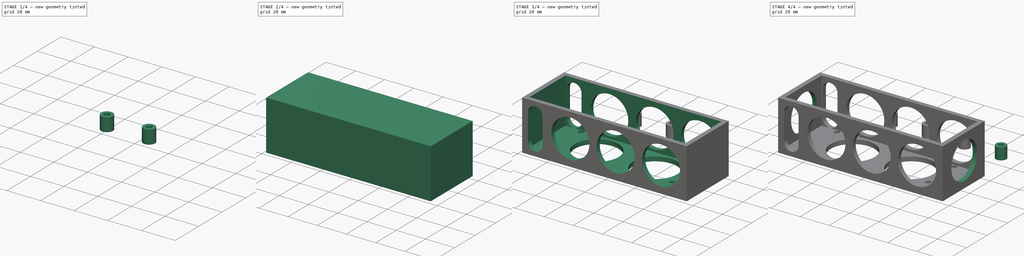
[diagram: build sequence overview — one tinted view per stage of 4, left to right]
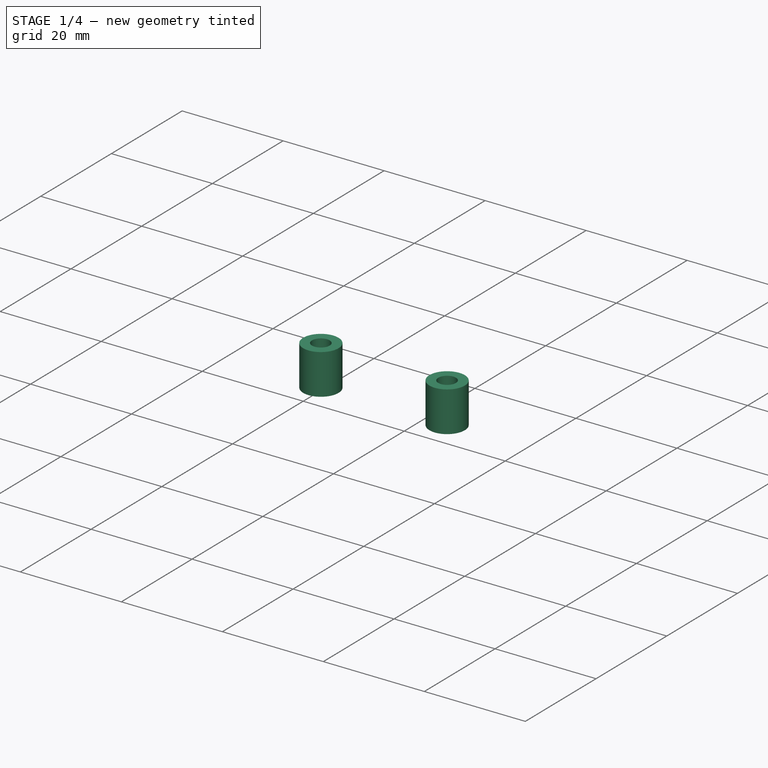
[diagram: stage 1 of 4 — iso view after this stage's code; geometry added in this stage tinted green]
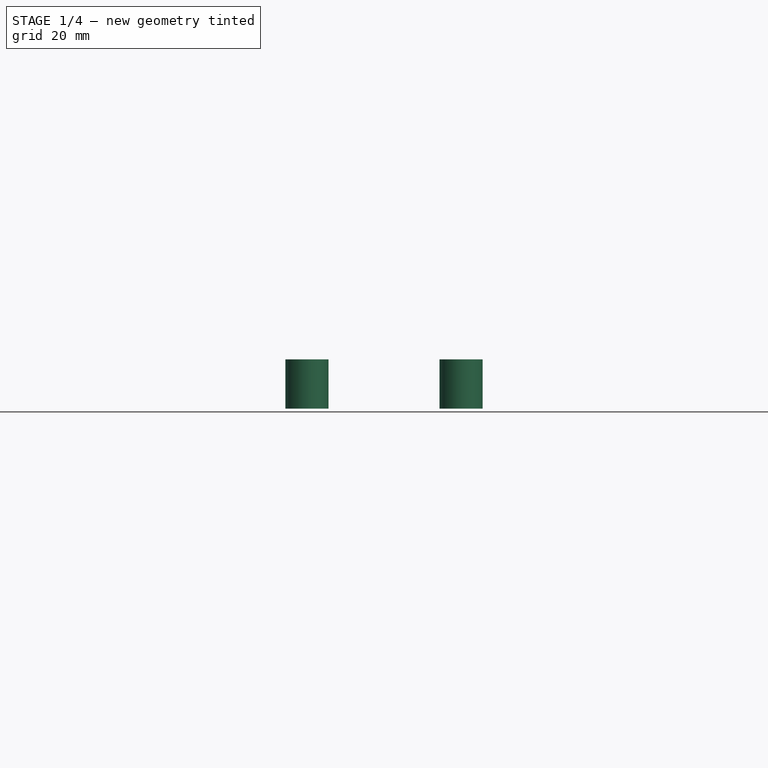
[diagram: stage 1 of 4 — front view after this stage's code; geometry added in this stage tinted green]
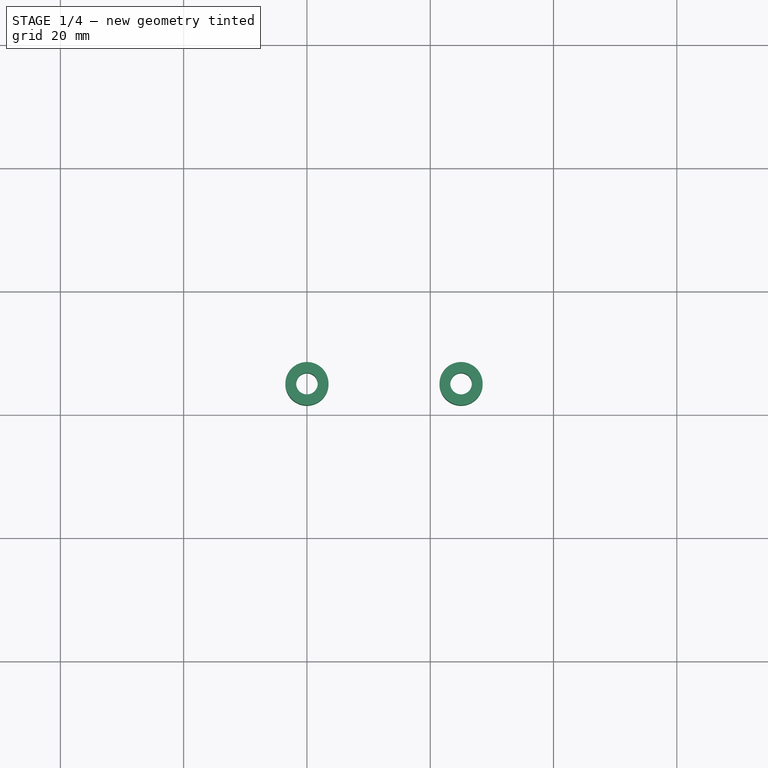
[diagram: stage 1 of 4 — top view after this stage's code; geometry added in this stage tinted green]
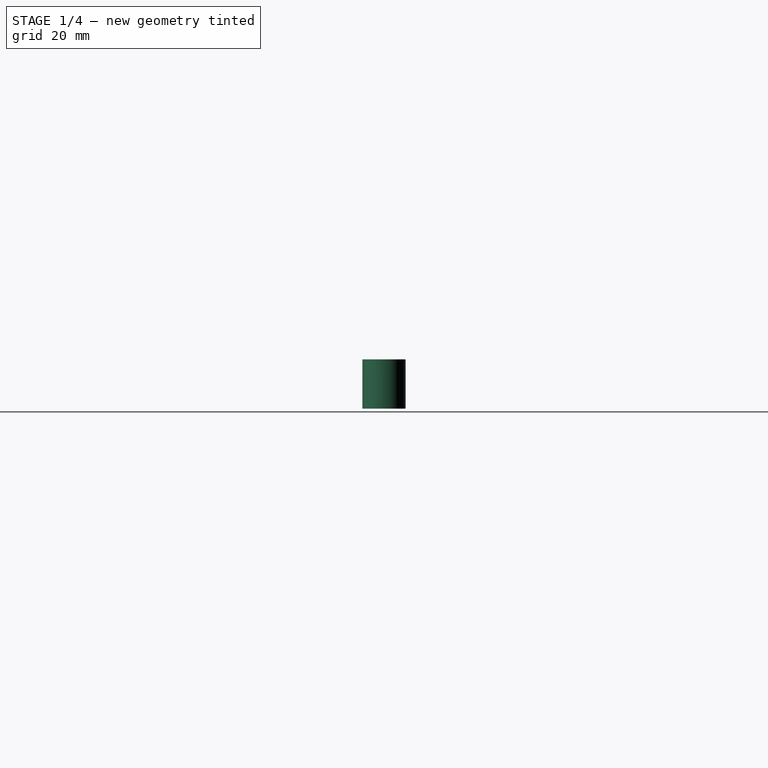
[diagram: stage 1 of 4 — right view after this stage's code; geometry added in this stage tinted green]
FCSTD DOCUMENT  (FreeCAD 0.14R3700 (Git))
Label: BatteryBoxSpacer
License: CC-BY 3.0
LicenseURL: http://creativecommons.org/licenses/by/3.0/
objects: Sketcher::SketchObject×9, PartDesign::Pad×5, PartDesign::Pocket×4
note: 27 computed .brp shape members not serialized (recipe doc carries the construction recipe); baked Part::Feature solids carry a one-line shape summary decoded from their .brp

FEATURE [Sketcher::SketchObject] Sketch007
  Placement = pos=(25,25,0) rot=(0,0,1;0rad)
  sketch-geometry (2):
    g0: Circle CenterX=0 CenterY=0 CenterZ=0 NormalX=0 NormalY=0 NormalZ=1 Radius=3.5
    g1: Circle CenterX=0 CenterY=0 CenterZ=0 NormalX=0 NormalY=0 NormalZ=1 Radius=1.75
  constraints (4):
    c: Radius(g0) = 3.5
    c: Coincident(g0,g-1)
    c: Radius(g1) = 1.75
    c: Coincident(g1,g-1)
FEATURE [PartDesign::Pad] Pad003
  Length = 8
  Length2 = 20
  Placement = pos=(25,25,0) rot=(0,0,1;0rad)
  Sketch = -> Sketch007
  Type = 0
FEATURE [Sketcher::SketchObject] Sketch008
  Placement = pos=(0,25,0) rot=(0,0,1;0rad)
  sketch-geometry (2):
    g0: Circle CenterX=0 CenterY=0 CenterZ=0 NormalX=0 NormalY=0 NormalZ=1 Radius=3.5
    g1: Circle CenterX=0 CenterY=0 CenterZ=0 NormalX=0 NormalY=0 NormalZ=1 Radius=1.75
  constraints (4):
    c: Radius(g0) = 3.5
    c: Coincident(g0,g-1)
    c: Radius(g1) = 1.75
    c: Coincident(g1,g-1)
FEATURE [PartDesign::Pad] Pad004
  Length = 8
  Length2 = 20
  Placement = pos=(0,25,0) rot=(0,0,1;0rad)
  Sketch = -> Sketch008
  Type = 0
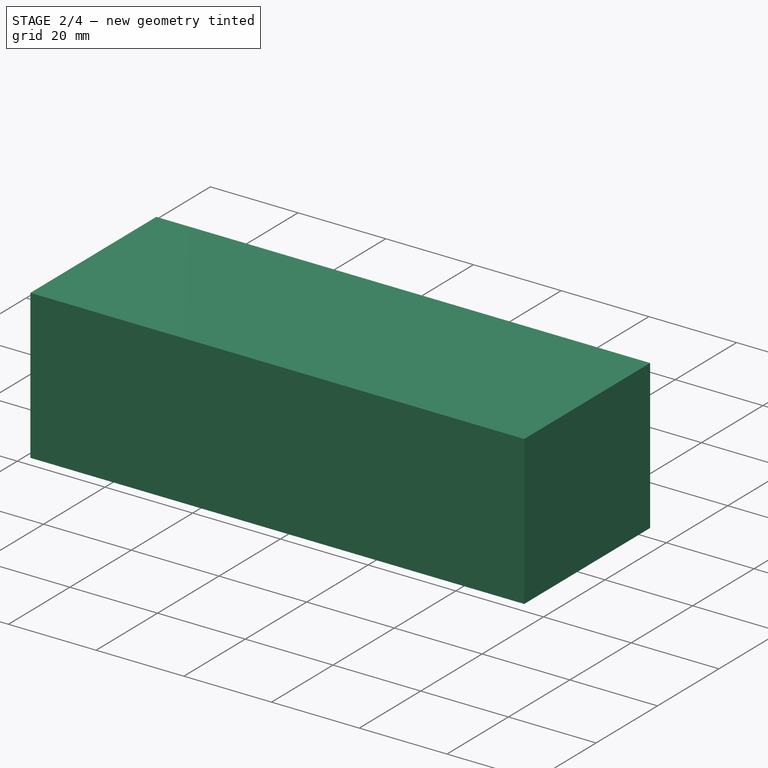
[diagram: stage 2 of 4 — iso view after this stage's code; geometry added in this stage tinted green]
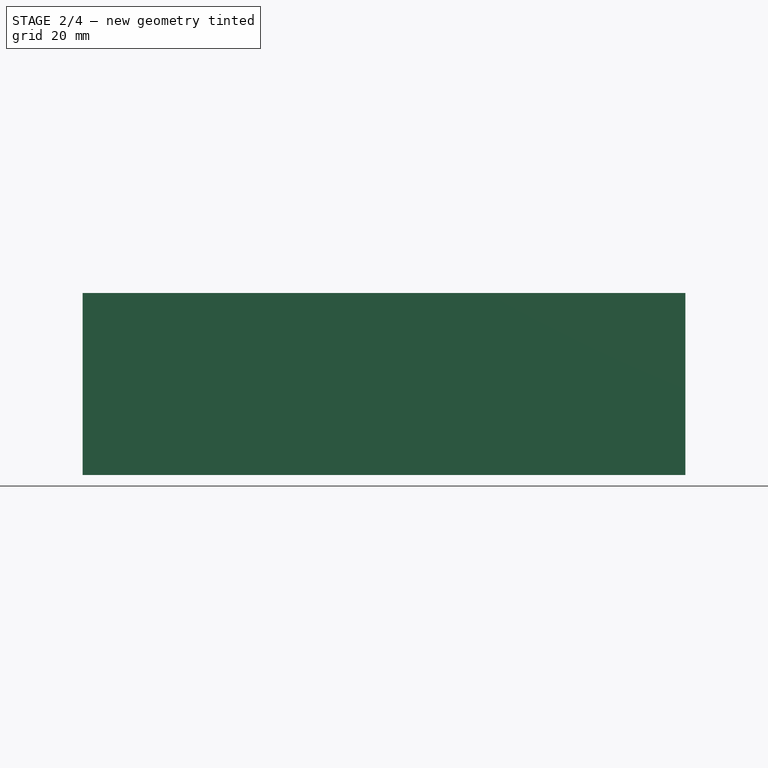
[diagram: stage 2 of 4 — front view after this stage's code; geometry added in this stage tinted green]
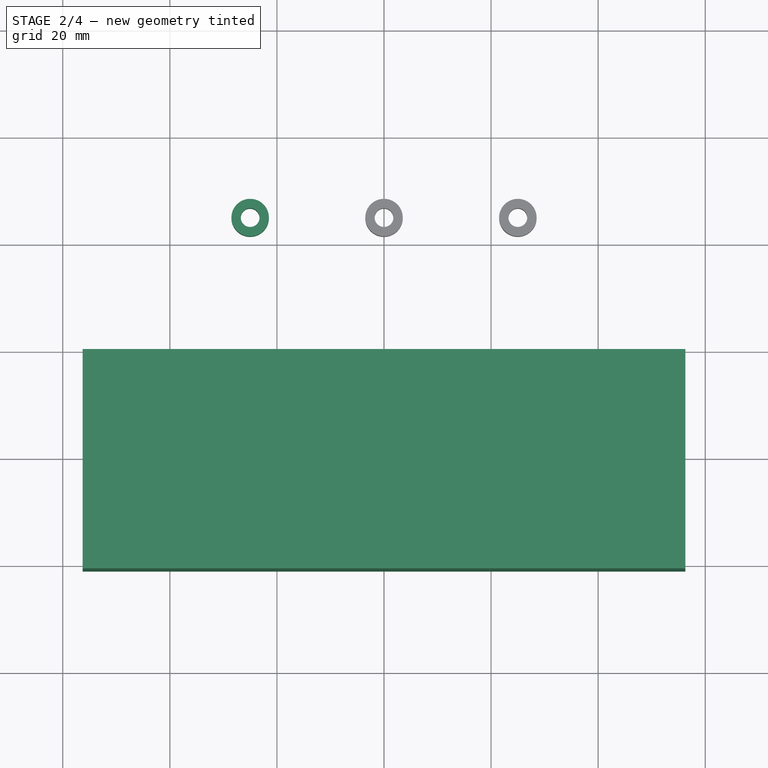
[diagram: stage 2 of 4 — top view after this stage's code; geometry added in this stage tinted green]
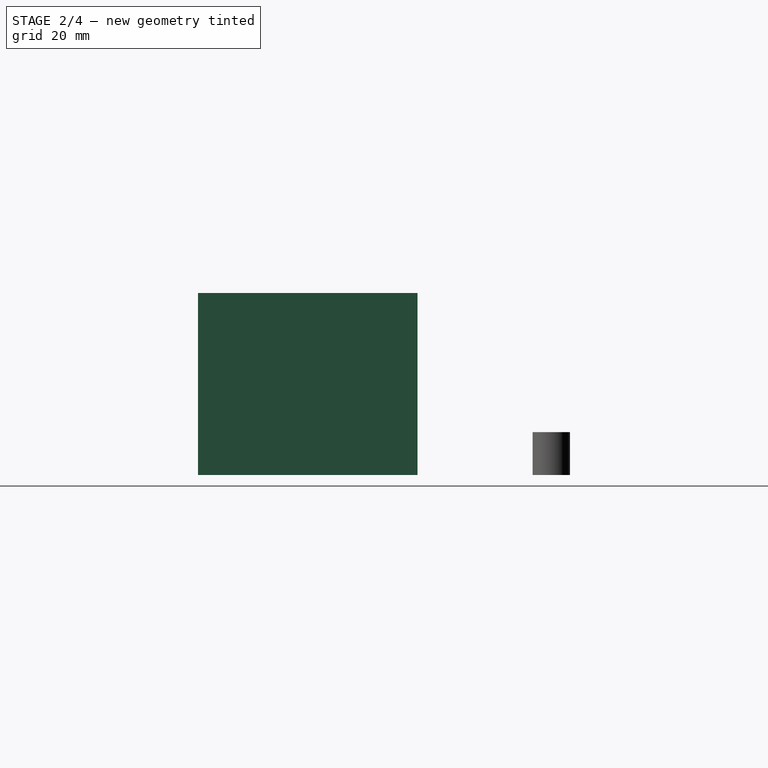
[diagram: stage 2 of 4 — right view after this stage's code; geometry added in this stage tinted green]
FEATURE [Sketcher::SketchObject] Sketch001  label="Top"
  Placement = pos=(0,0,0) rot=(1,0,0;1.5708rad)
  sketch-geometry (4):
    g0: LineSegment StartX=-56.3 StartY=0 StartZ=0 EndX=56.3 EndY=0 EndZ=0
    g1: LineSegment StartX=56.3 StartY=0 StartZ=0 EndX=56.3 EndY=34 EndZ=0
    g2: LineSegment StartX=56.3 StartY=34 StartZ=0 EndX=-56.3 EndY=34 EndZ=0
    g3: LineSegment StartX=-56.3 StartY=34 StartZ=0 EndX=-56.3 EndY=0 EndZ=0
  constraints (12):
    c: Coincident(g0,g1)
    c: Coincident(g1,g2)
    c: Coincident(g2,g3)
    c: Coincident(g3,g0)
    c: Horizontal(g0)
    c: Horizontal(g2)
    c: Vertical(g1)
    c: Vertical(g3)
    c: DistanceX(g2,g1) = 112.6
    c: DistanceX(g-1,g0) = 56.3
    c: DistanceY(g0,g1) = 34
    c: DistanceY(g-1,g0) = 0
FEATURE [PartDesign::Pad] Pad001
  Length = 41
  Length2 = 20
  Placement = pos=(0,0,0) rot=(1,0,0;1.5708rad)
  Sketch = -> Sketch001
  Type = 0
FEATURE [Sketcher::SketchObject] Sketch006
  Placement = pos=(-25,25,0) rot=(0,0,1;0rad)
  sketch-geometry (2):
    g0: Circle CenterX=0 CenterY=0 CenterZ=0 NormalX=0 NormalY=0 NormalZ=1 Radius=3.5
    g1: Circle CenterX=0 CenterY=0 CenterZ=0 NormalX=0 NormalY=0 NormalZ=1 Radius=1.75
  constraints (4):
    c: Radius(g0) = 3.5
    c: Coincident(g0,g-1)
    c: Radius(g1) = 1.75
    c: Coincident(g1,g-1)
FEATURE [PartDesign::Pad] Pad002
  Length = 8
  Length2 = 20
  Placement = pos=(-25,25,0) rot=(0,0,1;0rad)
  Sketch = -> Sketch006
  Type = 0
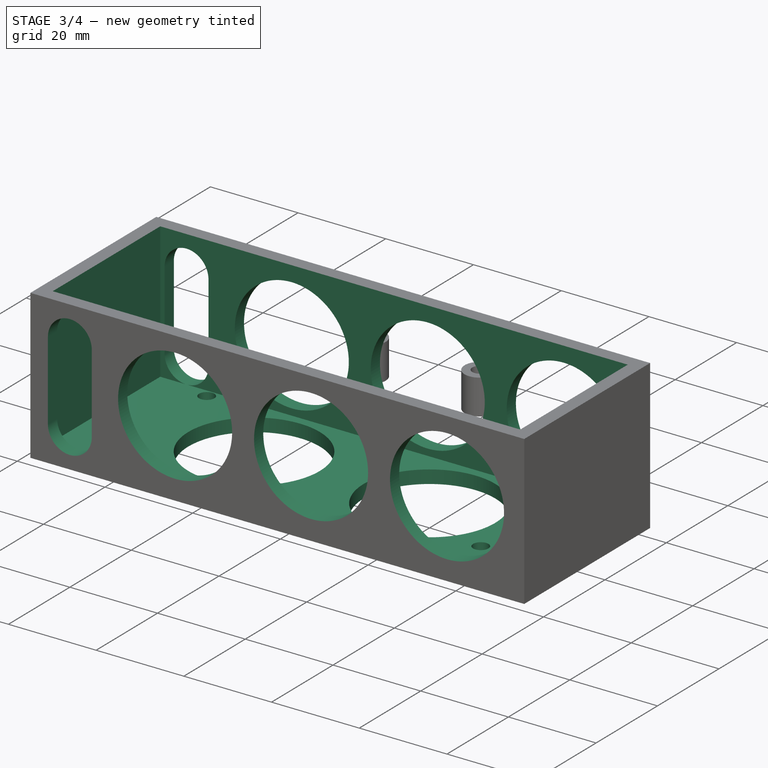
[diagram: stage 3 of 4 — iso view after this stage's code; geometry added in this stage tinted green]
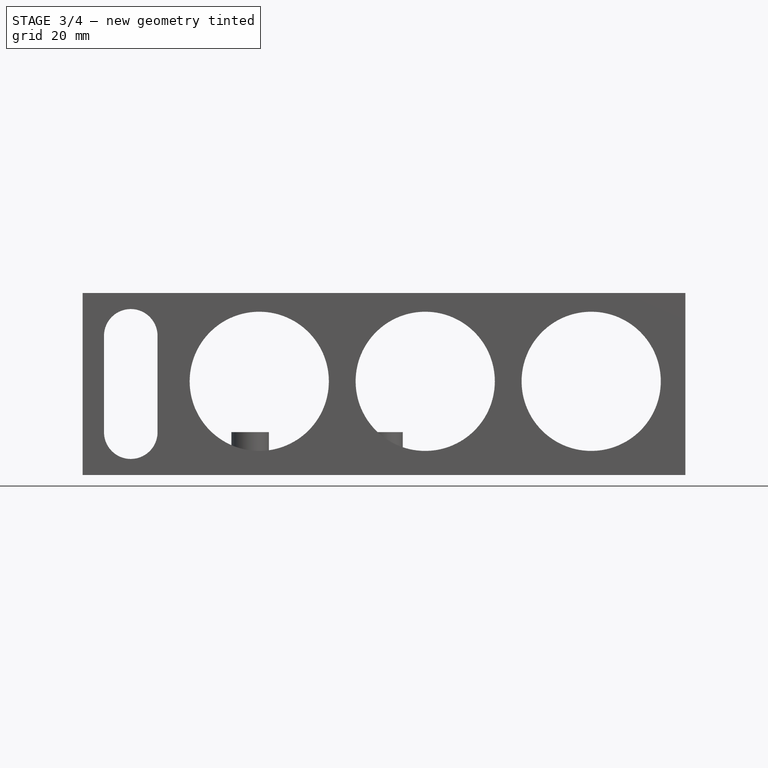
[diagram: stage 3 of 4 — front view after this stage's code; geometry added in this stage tinted green]
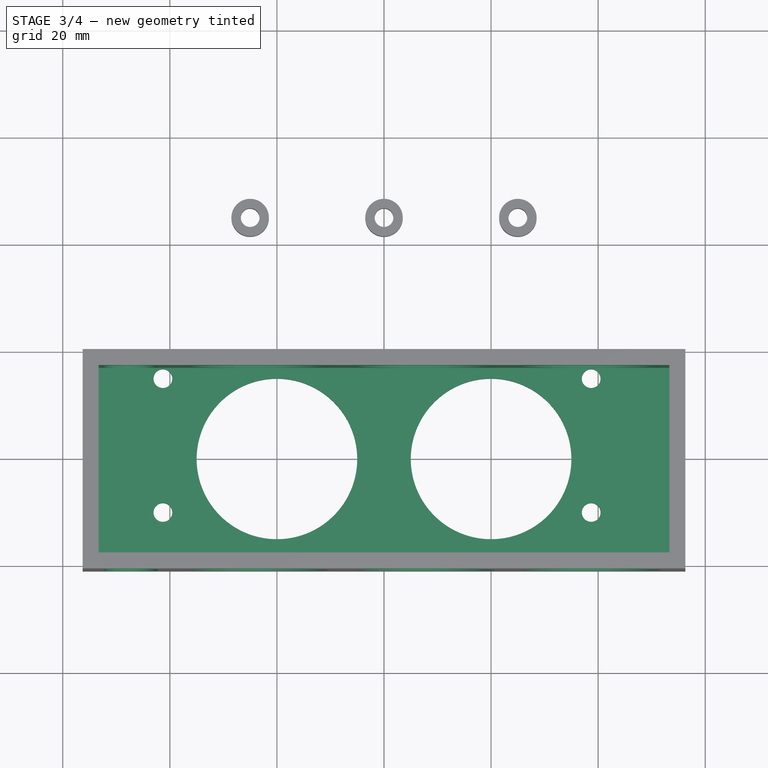
[diagram: stage 3 of 4 — top view after this stage's code; geometry added in this stage tinted green]
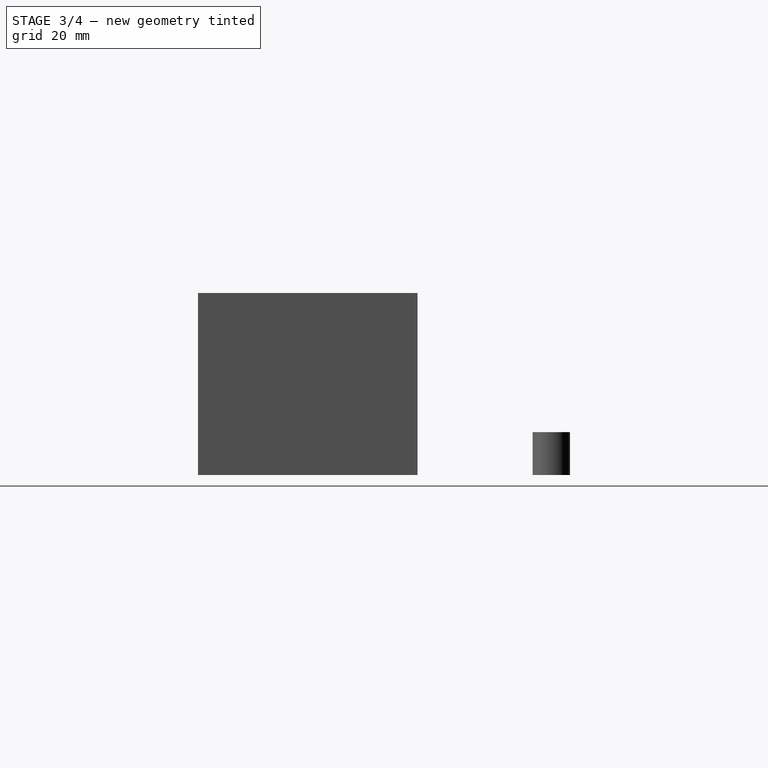
[diagram: stage 3 of 4 — right view after this stage's code; geometry added in this stage tinted green]
FEATURE [Sketcher::SketchObject] Sketch002  label="Side 1"
  Placement = pos=(0,0,34) rot=(0,0,1;3.14159rad)
  Support = -> Pad001 [Face3]
  sketch-geometry (4):
    g0: LineSegment StartX=-53.3 StartY=38 StartZ=0 EndX=53.3 EndY=38 EndZ=0
    g1: LineSegment StartX=53.3 StartY=38 StartZ=0 EndX=53.3 EndY=3 EndZ=0
    g2: LineSegment StartX=53.3 StartY=3 StartZ=0 EndX=-53.3 EndY=3 EndZ=0
    g3: LineSegment StartX=-53.3 StartY=3 StartZ=0 EndX=-53.3 EndY=38 EndZ=0
  constraints (8):
    c: Coincident(g0,g1)
    c: Coincident(g1,g2)
    c: Coincident(g2,g3)
    c: Coincident(g3,g0)
    c: Horizontal(g0)
    c: Horizontal(g2)
    c: Vertical(g1)
    c: Vertical(g3)
FEATURE [PartDesign::Pocket] Pocket
  Length = 31
  Placement = pos=(0,0,0) rot=(1,0,0;1.5708rad)
  Sketch = -> Sketch002
  Type = 0
FEATURE [Sketcher::SketchObject] Sketch004  label="top cutouts"
  Placement = pos=(0,-41,0) rot=(1,0,0;1.5708rad)
  Support = -> Pocket [Face5]
  sketch-geometry (7):
    g0: Circle CenterX=-23.3 CenterY=17.5 CenterZ=0 NormalX=0 NormalY=0 NormalZ=1 Radius=13
    g1: Circle CenterX=7.7 CenterY=17.5 CenterZ=0 NormalX=0 NormalY=0 NormalZ=1 Radius=13
    g2: Circle CenterX=38.7 CenterY=17.5 CenterZ=0 NormalX=0 NormalY=0 NormalZ=1 Radius=13
    g3: ArcOfCircle CenterX=-47.3 CenterY=26 CenterZ=0 NormalX=0 NormalY=0 NormalZ=1 Radius=5 StartAngle=2.3871e-08 EndAngle=3.14159
    g4: ArcOfCircle CenterX=-47.3 CenterY=8 CenterZ=0 NormalX=0 NormalY=0 NormalZ=1 Radius=5 StartAngle=3.14159 EndAngle=6.28319
    g5: LineSegment StartX=-52.3 StartY=26 StartZ=0 EndX=-52.3 EndY=8.00002 EndZ=0
    g6: LineSegment StartX=-42.3 StartY=26 StartZ=0 EndX=-42.3 EndY=8.00002 EndZ=0
  constraints (11):
    c: Tangent(g3,g5)
    c: Tangent(g3,g6)
    c: Tangent(g4,g5)
    c: Tangent(g4,g6)
    c: Coincident(g3,g6)
    c: Coincident(g3,g5)
    c: Coincident(g5,g4)
    c: Coincident(g6,g4)
    c: Vertical(g5)
    c: Equal(g3,g4)
    c: Radius(g3) = 5
FEATURE [PartDesign::Pocket] Pocket001
  Length = 5
  Placement = pos=(0,0,0) rot=(1,0,0;1.5708rad)
  Sketch = -> Sketch004
  Type = 1
FEATURE [Sketcher::SketchObject] Sketch003  label="Back Cut out"
  Placement = pos=(0,0,0) rot=(1,0,0;3.14159rad)
  Support = -> Pocket001 [Face1]
  sketch-geometry (6):
    g0: Circle CenterX=-41.3 CenterY=30 CenterZ=0 NormalX=0 NormalY=0 NormalZ=1 Radius=1.75
    g1: Circle CenterX=38.7 CenterY=30 CenterZ=0 NormalX=0 NormalY=0 NormalZ=1 Radius=1.75
    g2: Circle CenterX=-41.3 CenterY=5 CenterZ=0 NormalX=0 NormalY=0 NormalZ=1 Radius=1.75
    g3: Circle CenterX=38.7 CenterY=5 CenterZ=0 NormalX=0 NormalY=0 NormalZ=1 Radius=1.75
    g4: Circle CenterX=-20 CenterY=20 CenterZ=0 NormalX=0 NormalY=0 NormalZ=1 Radius=15
    g5: Circle CenterX=20 CenterY=20 CenterZ=0 NormalX=0 NormalY=0 NormalZ=1 Radius=15
  constraints (12):
    c: DistanceX(g2,g3) = 80
    c: DistanceY(g3,g2) = 0
    c: DistanceX(g0,g2) = 0
    c: DistanceY(g2,g0) = 25
    c: Radius(g2) = 1.75
    c: Radius(g0) = 1.75
    c: Radius(g3) = 1.75
    c: DistanceX(g1,g3) = 0
    c: DistanceY(g1,g3) = -25
    c: Radius(g1) = 1.75
    c: Radius(g4) = 15
    c: Radius(g5) = 15
FEATURE [PartDesign::Pocket] Pocket002
  Length = 5
  Placement = pos=(0,0,0) rot=(1,0,0;1.5708rad)
  Sketch = -> Sketch003
  Type = 0
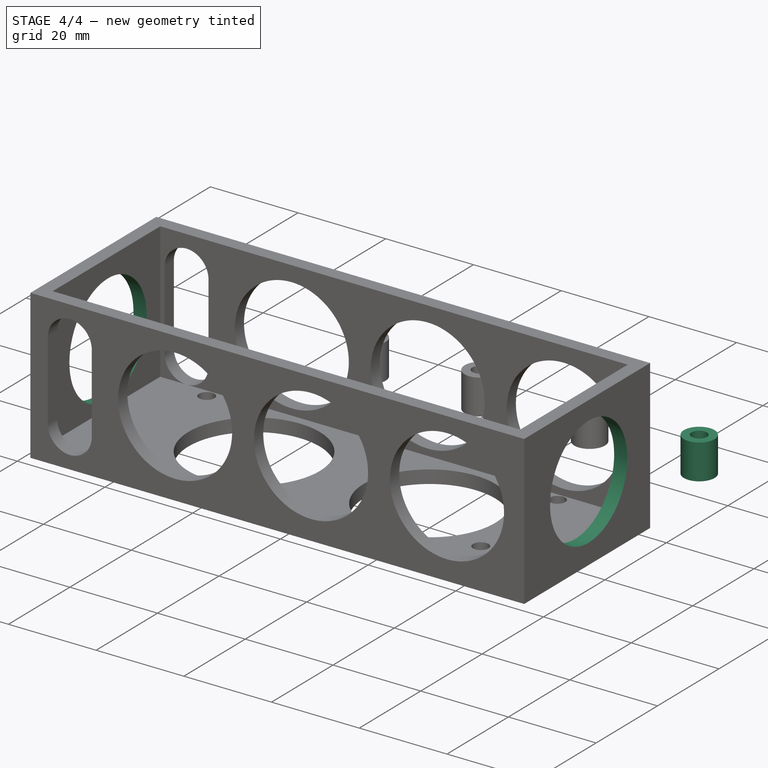
[diagram: stage 4 of 4 — iso view after this stage's code; geometry added in this stage tinted green]
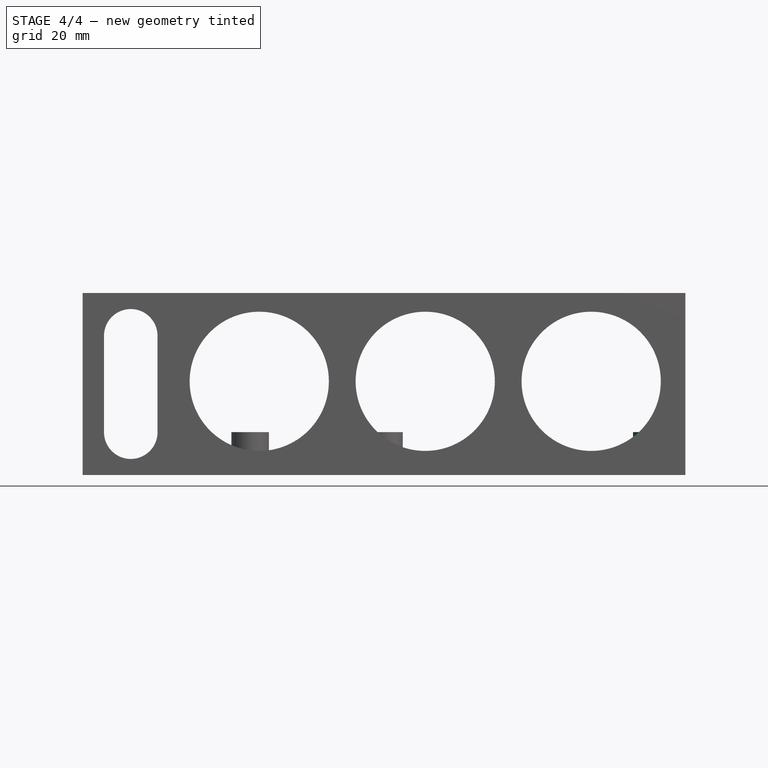
[diagram: stage 4 of 4 — front view after this stage's code; geometry added in this stage tinted green]
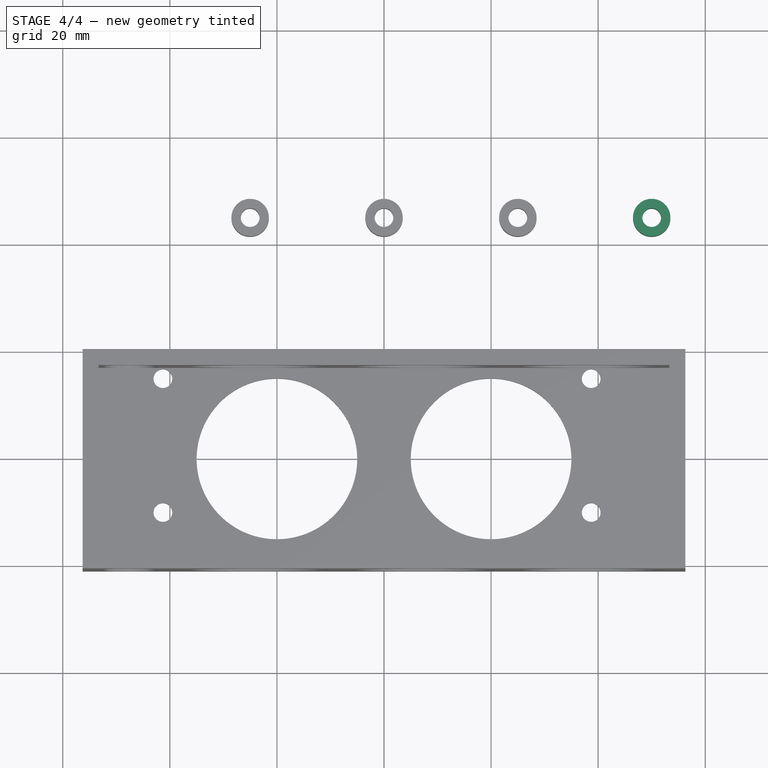
[diagram: stage 4 of 4 — top view after this stage's code; geometry added in this stage tinted green]
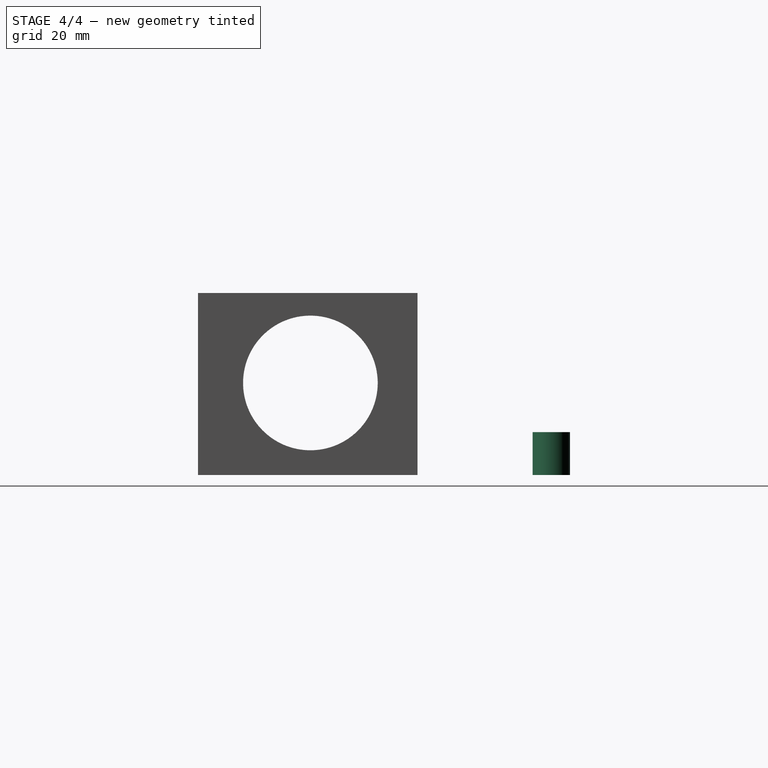
[diagram: stage 4 of 4 — right view after this stage's code; geometry added in this stage tinted green]
FEATURE [Sketcher::SketchObject] Sketch
  Placement = pos=(50,25,0) rot=(0,0,1;0rad)
  sketch-geometry (2):
    g0: Circle CenterX=0 CenterY=0 CenterZ=0 NormalX=0 NormalY=0 NormalZ=1 Radius=3.5
    g1: Circle CenterX=0 CenterY=0 CenterZ=0 NormalX=0 NormalY=0 NormalZ=1 Radius=1.75
  constraints (4):
    c: Radius(g0) = 3.5
    c: Coincident(g0,g-1)
    c: Radius(g1) = 1.75
    c: Coincident(g1,g-1)
FEATURE [PartDesign::Pad] Pad
  Length = 8
  Length2 = 20
  Placement = pos=(50,25,0) rot=(0,0,1;0rad)
  Sketch = -> Sketch
  Type = 0
FEATURE [Sketcher::SketchObject] Sketch005  label="side cutouts"
  Placement = pos=(56.3,0,0) rot=(0.707107,0,0.707107;3.14159rad)
  Support = -> Pocket002 [Face5]
  sketch-geometry (1):
    g0: Circle CenterX=17.1956 CenterY=20 CenterZ=0 NormalX=0 NormalY=0 NormalZ=1 Radius=12.5755
FEATURE [PartDesign::Pocket] Pocket003  label="Battery Box"
  Length = 5
  Placement = pos=(0,0,0) rot=(1,0,0;1.5708rad)
  Sketch = -> Sketch005
  Type = 1
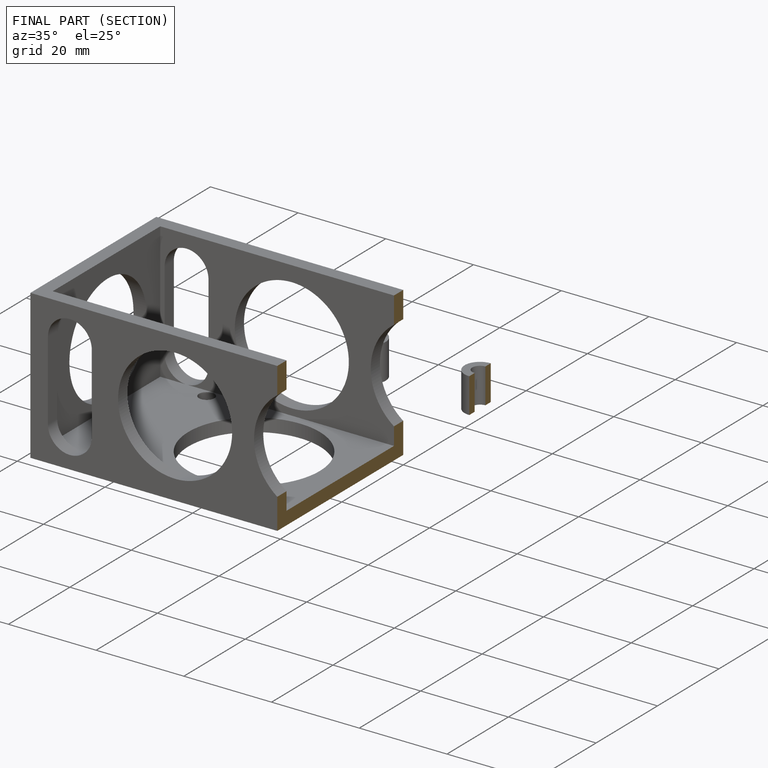
[diagram: finished part — half-section view (interior)]
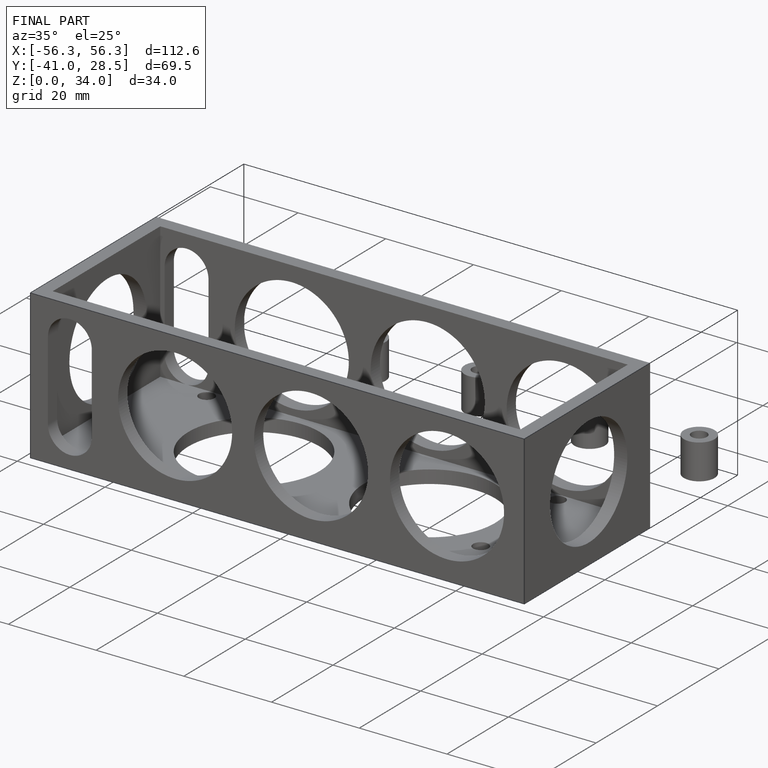
[diagram: finished part — iso view with bounding-box wireframe]
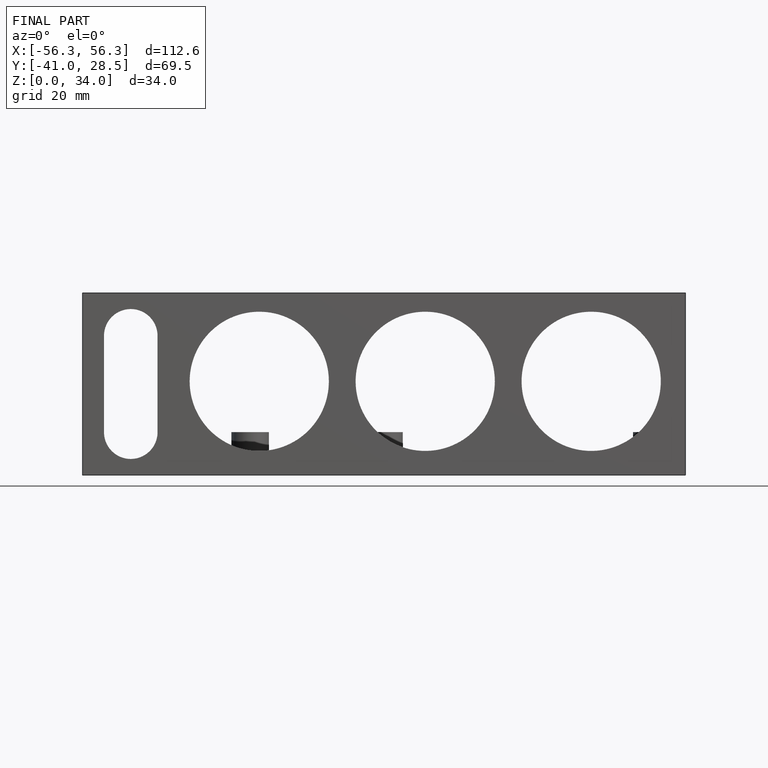
[diagram: finished part — front view with bounding-box wireframe]
